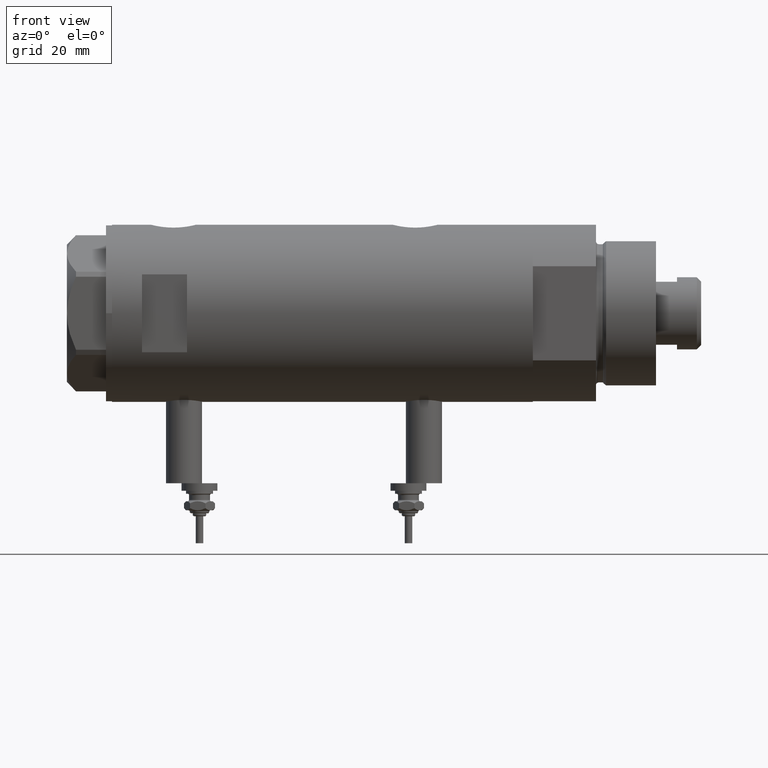
[diagram: clean part render]
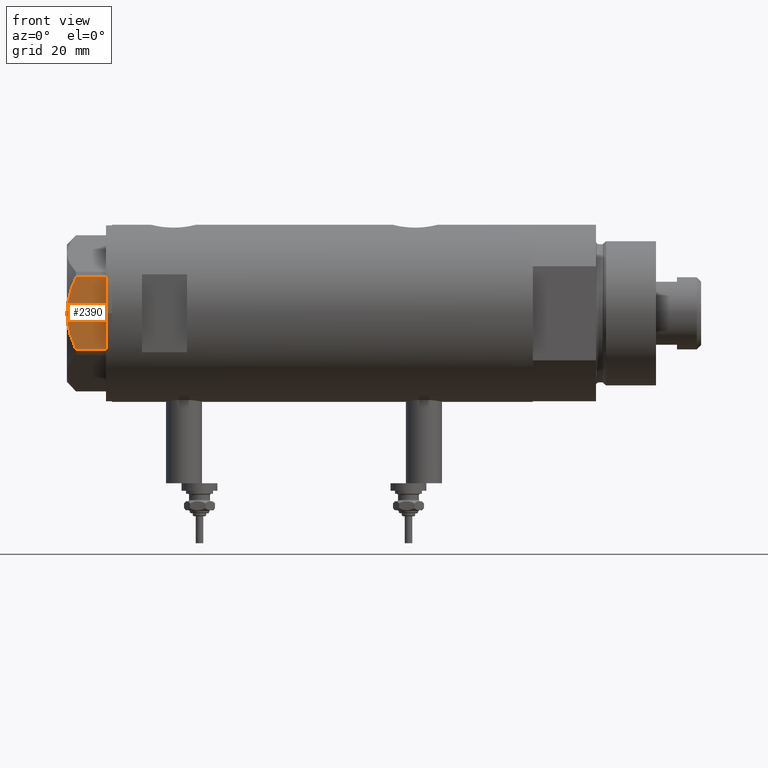
[diagram: same view with one face highlighted and labeled with its STEP entity id]
A machine part, front view. The second image highlights one B-rep face of the part: STEP entity #2390.
In plain terms, the highlighted planar face has unit normal (-0, 1, -0).
Its self-contained STEP definition (entity closure, byte-faithful):
#4 = CARTESIAN_POINT ( 'NONE',  ( -22.99999999999998579, 10.23890159976121517, 10.84081242829091707 ) ) ;
#291 = EDGE_CURVE ( 'NONE', #5474, #1065, #5043, .T. ) ;
#347 = ORIENTED_EDGE ( 'NONE', *, *, #841, .T. ) ;
#400 = VECTOR ( 'NONE', #3308, 1000.000000000000000 ) ;
#414 = CARTESIAN_POINT ( 'NONE',  ( -22.99999999999998579, 11.20825071633914582, 10.42817330637845430 ) ) ;
#416 = FACE_OUTER_BOUND ( 'NONE', #3087, .T. ) ;
#591 = CARTESIAN_POINT ( 'NONE',  ( -22.99999999999994316, -2.643615312305168441, 12.85430456063626714 ) ) ;
#726 = LINE ( 'NONE', #1724, #5422 ) ;
#768 = CARTESIAN_POINT ( 'NONE',  ( -22.99999999999999289, 12.15905619136131754, 0.000000000000000000 ) ) ;
#841 = EDGE_CURVE ( 'NONE', #5447, #3401, #3548, .T. ) ;
#842 = CARTESIAN_POINT ( 'NONE',  ( -22.99999999999990763, -11.20155944044818241, 10.42110268263274264 ) ) ;
#925 = CARTESIAN_POINT ( 'NONE',  ( -22.99999999999996092, 2.122900714018063795, 13.00000000000009592 ) ) ;
#1030 = CARTESIAN_POINT ( 'NONE',  ( -22.99999999999999289, 12.15905619136132110, 9.983800287807621743 ) ) ;
#1065 = VERTEX_POINT ( 'NONE', #5220 ) ;
#1107 = CARTESIAN_POINT ( 'NONE',  ( -22.99999999999995381, -0.5295934231897790889, 13.00000000000009237 ) ) ;
#1272 = DIRECTION ( 'NONE',  ( 0.000000000000000000, 0.000000000000000000, 1.000000000000000000 ) ) ;
#1398 = DIRECTION ( 'NONE',  ( -3.527173405730720929E-15, 1.000000000000000000, 0.000000000000000000 ) ) ;
#1526 = CARTESIAN_POINT ( 'NONE',  ( -22.99999999999993250, -5.228918809624134134, 12.43333703384985611 ) ) ;
#1537 = B_SPLINE_CURVE_WITH_KNOTS ( 'NONE', 3,
 ( #4171, #414, #4, #2733, #2333, #5067, #2765, #2225, #925, #3268 ),
 .UNSPECIFIED., .F., .F.,
 ( 4, 2, 2, 2, 4 ),
 ( 0.03516523594057417712, 0.03831677594541236381, 0.03989254594783145369, 0.04146831595025054357, 0.04777139595992690307 ),
 .UNSPECIFIED. ) ;
#1724 = CARTESIAN_POINT ( 'NONE',  ( -22.99999999999990763, -12.15905619136148985, 13.00000000000000000 ) ) ;
#1788 = EDGE_CURVE ( 'NONE', #5447, #5474, #1537, .T. ) ;
#1846 = CARTESIAN_POINT ( 'NONE',  ( -22.99999999999999645, 13.27905619136132032, 13.00000000000000000 ) ) ;
#1900 = VECTOR ( 'NONE', #4832, 1000.000000000000000 ) ;
#2004 = CARTESIAN_POINT ( 'NONE',  ( -22.99999999999991829, -9.734726261263313418, 11.02892470009565251 ) ) ;
#2225 = CARTESIAN_POINT ( 'NONE',  ( -22.99999999999996447, 4.194757081058973824, 12.70300035152520302 ) ) ;
#2227 = PLANE ( 'NONE',  #3447 ) ;
#2319 = VERTEX_POINT ( 'NONE', #2402 ) ;
#2333 = CARTESIAN_POINT ( 'NONE',  ( -22.99999999999997513, 8.246028007352348865, 11.57113180864690705 ) ) ;
#2390 = ADVANCED_FACE ( 'NONE', ( #416 ), #2227, .F. ) ;
#2402 = CARTESIAN_POINT ( 'NONE',  ( -22.99999999999990763, -12.15905619136148985, 0.000000000000000000 ) ) ;
#2485 = ORIENTED_EDGE ( 'NONE', *, *, #3536, .T. ) ;
#2733 = CARTESIAN_POINT ( 'NONE',  ( -22.99999999999997158, 8.748091966971372813, 11.39681897828457302 ) ) ;
#2765 = CARTESIAN_POINT ( 'NONE',  ( -22.99999999999997513, 6.734330413511418811, 12.03938974125266981 ) ) ;
#2887 = CARTESIAN_POINT ( 'NONE',  ( -22.99999999999992184, -7.253003311474400583, 11.90327681034764140 ) ) ;
#3087 = EDGE_LOOP ( 'NONE', ( #4558, #347, #2485, #3287, #4436 ) ) ;
#3268 = CARTESIAN_POINT ( 'NONE',  ( -23.00000000000004619, -8.112498833180673323E-14, 13.00000000000000000 ) ) ;
#3287 = ORIENTED_EDGE ( 'NONE', *, *, #5614, .T. ) ;
#3308 = DIRECTION ( 'NONE',  ( 3.527173405730720141E-15, -1.000000000000000000, 0.000000000000000000 ) ) ;
#3372 = CARTESIAN_POINT ( 'NONE',  ( -22.99999999999999645, 13.27905619136132032, 0.000000000000000000 ) ) ;
#3401 = VERTEX_POINT ( 'NONE', #768 ) ;
#3404 = CARTESIAN_POINT ( 'NONE',  ( -22.99999999999994316, -1.063773509315741217, 12.98143808360682883 ) ) ;
#3447 = AXIS2_PLACEMENT_3D ( 'NONE', #1846, #5488, #1398 ) ;
#3536 = EDGE_CURVE ( 'NONE', #3401, #2319, #4750, .T. ) ;
#3548 = LINE ( 'NONE', #5793, #1900 ) ;
#3835 = CARTESIAN_POINT ( 'NONE',  ( -22.99999999999991473, -10.22738952213796715, 10.83247031367477398 ) ) ;
#3929 = CARTESIAN_POINT ( 'NONE',  ( -22.99999999999991473, -11.68282849742337248, 10.20637235269541776 ) ) ;
#4171 = CARTESIAN_POINT ( 'NONE',  ( -22.99999999999999289, 12.15905619136132110, 9.983800287807621743 ) ) ;
#4279 = CARTESIAN_POINT ( 'NONE',  ( -22.99999999999992184, -8.252113629125281236, 11.58164206268022234 ) ) ;
#4436 = ORIENTED_EDGE ( 'NONE', *, *, #291, .F. ) ;
#4495 = CARTESIAN_POINT ( 'NONE',  ( -22.99999999999990763, -12.15905619136149340, 9.983800287807616414 ) ) ;
#4558 = ORIENTED_EDGE ( 'NONE', *, *, #1788, .F. ) ;
#4688 = CARTESIAN_POINT ( 'NONE',  ( -23.00000000000004619, -8.112498833180673323E-14, 13.00000000000000000 ) ) ;
#4750 = LINE ( 'NONE', #3372, #400 ) ;
#4832 = DIRECTION ( 'NONE',  ( 0.000000000000000000, 0.000000000000000000, -1.000000000000000000 ) ) ;
#5043 = B_SPLINE_CURVE_WITH_KNOTS ( 'NONE', 3,
 ( #4688, #1107, #3404, #5235, #591, #5619, #1526, #2887, #4279, #2004, #3835, #842, #3929, #4495 ),
 .UNSPECIFIED., .F., .F.,
 ( 4, 2, 2, 2, 2, 2, 4 ),
 ( 0.04777139595992690307, 0.04934380568070230455, 0.05091621540147769909, 0.05406103484302849510, 0.05720585428457929111, 0.05877826400535468565, 0.06035067372613008019 ),
 .UNSPECIFIED. ) ;
#5067 = CARTESIAN_POINT ( 'NONE',  ( -22.99999999999997513, 7.239756182922193695, 11.89218606342285156 ) ) ;
#5220 = CARTESIAN_POINT ( 'NONE',  ( -22.99999999999990763, -12.15905619136149340, 9.983800287807616414 ) ) ;
#5235 = CARTESIAN_POINT ( 'NONE',  ( -22.99999999999993250, -2.119709279061928964, 12.90853521217319688 ) ) ;
#5422 = VECTOR ( 'NONE', #1272, 1000.000000000000000 ) ;
#5447 = VERTEX_POINT ( 'NONE', #1030 ) ;
#5474 = VERTEX_POINT ( 'NONE', #5560 ) ;
#5488 = DIRECTION ( 'NONE',  ( 1.000000000000000000, 3.527173405730720929E-15, -0.000000000000000000 ) ) ;
#5560 = CARTESIAN_POINT ( 'NONE',  ( -23.00000000000004619, -8.112498833180673323E-14, 13.00000000000000000 ) ) ;
#5614 = EDGE_CURVE ( 'NONE', #2319, #1065, #726, .T. ) ;
#5619 = CARTESIAN_POINT ( 'NONE',  ( -22.99999999999992895, -4.203926054641974552, 12.64168122312250553 ) ) ;
#5793 = CARTESIAN_POINT ( 'NONE',  ( -22.99999999999999289, 12.15905619136131754, 13.00000000000000000 ) ) ;